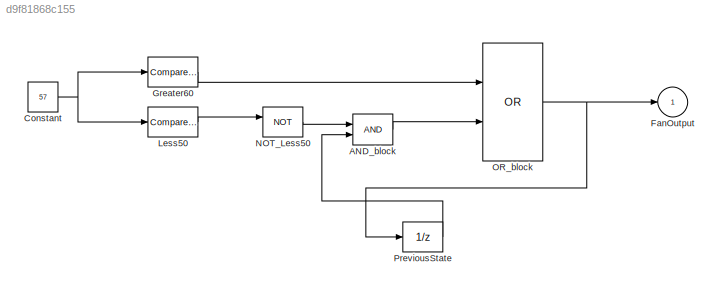
MODEL slx_d9f81868c155
KIND model
CONFIG AbsTol = auto
CONFIG EnableMultiTasking = off
CONFIG FixedStep = auto
CONFIG MaxStep = auto
CONFIG MinStep = auto
CONFIG RelTol = 1e-3
CONFIG SampleTimeConstraint = Unconstrained
CONFIG SolverName = VariableStepAuto
CONFIG StartTime = 0.0
CONFIG StopTime = 10.0
BLOCK [Logic] AND_block
  AllPortsSameDT = off
  OutDataTypeStr = boolean
BLOCK [Constant] Constant
  Value = 57
BLOCK [Outport] FanOutput
BLOCK [Reference] Greater60  REF=simulink/Logic and Bit
Operations/Compare
To Constant
  SourceBlock = simulink/Logic and Bit\nOperations/Compare\nTo Constant
  SourceType = Compare To Constant
BLOCK [Reference] Less50  REF=simulink/Logic and Bit
Operations/Compare
To Constant
  SourceBlock = simulink/Logic and Bit\nOperations/Compare\nTo Constant
  SourceType = Compare To Constant
BLOCK [Logic] NOT_Less50
  AllPortsSameDT = off
  Operator = NOT
  OutDataTypeStr = boolean
BLOCK [Logic] OR_block
  AllPortsSameDT = off
  Operator = OR
  OutDataTypeStr = boolean
BLOCK [UnitDelay] PreviousState
  HasFrameUpgradeWarning = on
  SampleTime = -1
LINE AND_block:1 -> OR_block:2
NET Constant:1 -> Greater60:1, Less50:1
LINE Greater60:1 -> OR_block:1
LINE Less50:1 -> NOT_Less50:1
LINE NOT_Less50:1 -> AND_block:1
NET OR_block:1 -> FanOutput:1, PreviousState:1
LINE PreviousState:1 -> AND_block:2
note: NET lines group one-source signal fan-out (src -> all destinations, sorted); 1:1 wires keep LINE
